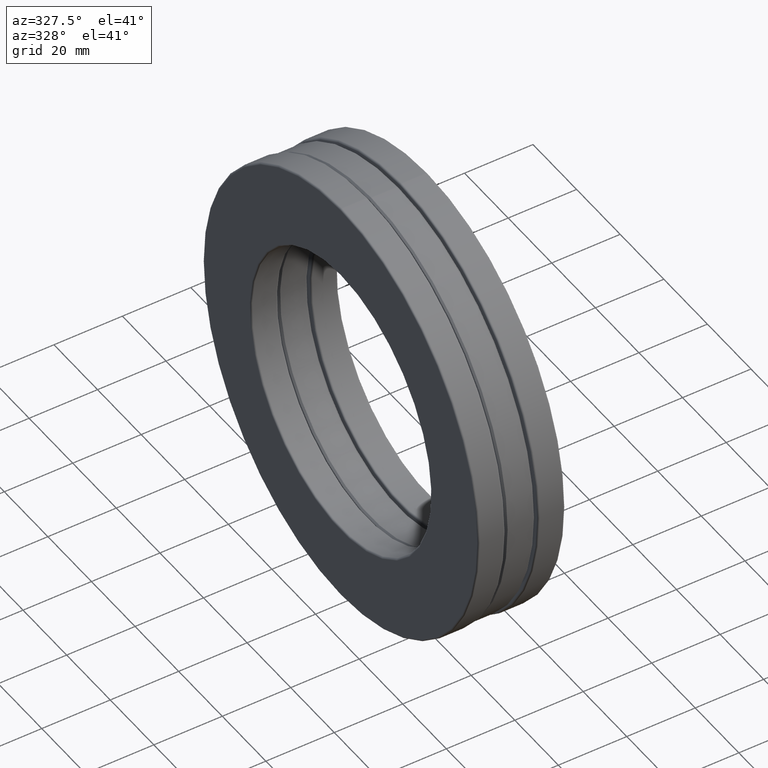
[diagram: clean part render]
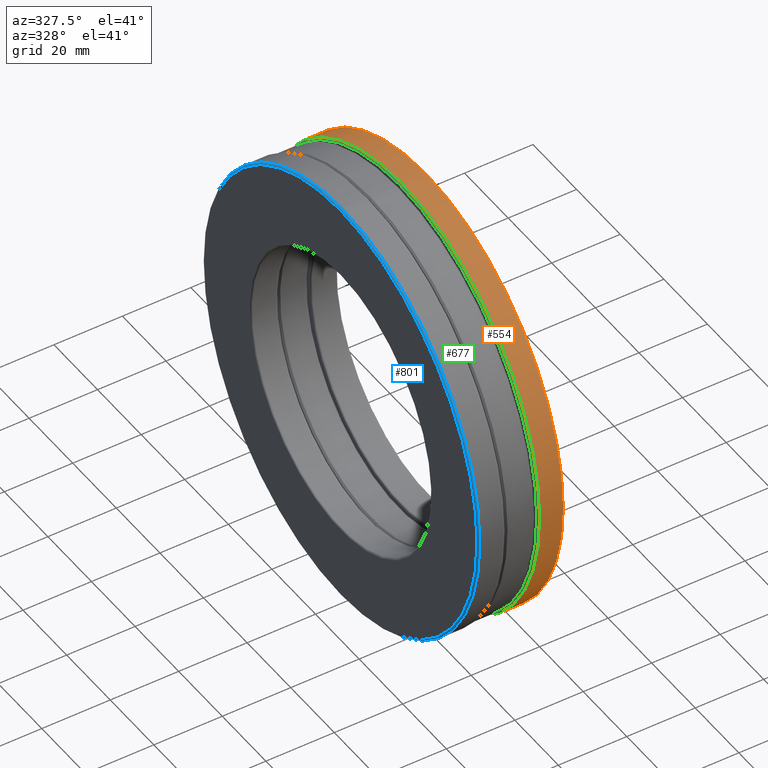
[diagram: same view with three faces highlighted in distinct colors, each labeled with its STEP entity id]
A machine part, auxiliary view with three faces highlighted in distinct colors.
Their STEP definitions:

[orange] entity #554 — the highlighted cylindrical surface (bore or boss wall) has radius 63.1031 mm, axis along (-1, -0, -0).
#31 = CARTESIAN_POINT ( 'NONE',  ( 0.2075000000000000200, 0.0000000000000000000, 2.484375000000000000 ) ) ;
#65 = CIRCLE ( 'NONE', #429, 2.484375000000000000 ) ;
#171 = EDGE_CURVE ( 'NONE', #1154, #1154, #525, .T. ) ;
#199 = DIRECTION ( 'NONE',  ( -1.000000000000000000, -0.0000000000000000000, -0.0000000000000000000 ) ) ;
#204 = EDGE_LOOP ( 'NONE', ( #1197 ) ) ;
#283 = DIRECTION ( 'NONE',  ( -1.000000000000000000, -0.0000000000000000000, -0.0000000000000000000 ) ) ;
#411 = DIRECTION ( 'NONE',  ( 0.0000000000000000000, 0.0000000000000000000, 1.000000000000000000 ) ) ;
#420 = ORIENTED_EDGE ( 'NONE', *, *, #441, .T. ) ;
#429 = AXIS2_PLACEMENT_3D ( 'NONE', #969, #1047, #487 ) ;
#441 = EDGE_CURVE ( 'NONE', #1332, #1332, #65, .T. ) ;
#487 = DIRECTION ( 'NONE',  ( 0.0000000000000000000, 0.0000000000000000000, 1.000000000000000000 ) ) ;
#521 = CARTESIAN_POINT ( 'NONE',  ( 0.0000000000000000000, 0.0000000000000000000, 0.0000000000000000000 ) ) ;
#525 = CIRCLE ( 'NONE', #998, 2.484375000000000000 ) ;
#533 = DIRECTION ( 'NONE',  ( 0.0000000000000000000, 0.0000000000000000000, 1.000000000000000000 ) ) ;
#554 = ADVANCED_FACE ( 'NONE', ( #1072, #773 ), #1328, .T. ) ;
#592 = CARTESIAN_POINT ( 'NONE',  ( 0.4799999999999999800, 0.0000000000000000000, 2.484375000000000000 ) ) ;
#773 = FACE_OUTER_BOUND ( 'NONE', #1228, .T. ) ;
#969 = CARTESIAN_POINT ( 'NONE',  ( 0.4799999999999999800, 0.0000000000000000000, 0.0000000000000000000 ) ) ;
#998 = AXIS2_PLACEMENT_3D ( 'NONE', #1177, #283, #411 ) ;
#1047 = DIRECTION ( 'NONE',  ( -1.000000000000000000, -0.0000000000000000000, -0.0000000000000000000 ) ) ;
#1072 = FACE_OUTER_BOUND ( 'NONE', #204, .T. ) ;
#1154 = VERTEX_POINT ( 'NONE', #31 ) ;
#1177 = CARTESIAN_POINT ( 'NONE',  ( 0.2075000000000000200, 0.0000000000000000000, 0.0000000000000000000 ) ) ;
#1197 = ORIENTED_EDGE ( 'NONE', *, *, #171, .F. ) ;
#1228 = EDGE_LOOP ( 'NONE', ( #420 ) ) ;
#1328 = CYLINDRICAL_SURFACE ( 'NONE', #1386, 2.484375000000000000 ) ;
#1332 = VERTEX_POINT ( 'NONE', #592 ) ;
#1386 = AXIS2_PLACEMENT_3D ( 'NONE', #521, #199, #533 ) ;

[blue] entity #801 — the highlighted toroidal blend (fillet) surface has major radius 62.5951 mm and minor (blend) radius 0.508 mm.
#7 = DIRECTION ( 'NONE',  ( -1.000000000000000000, -0.0000000000000000000, -0.0000000000000000000 ) ) ;
#54 = VERTEX_POINT ( 'NONE', #1258 ) ;
#203 = DIRECTION ( 'NONE',  ( -1.000000000000000000, -0.0000000000000000000, -0.0000000000000000000 ) ) ;
#259 = CARTESIAN_POINT ( 'NONE',  ( -0.4800000000000000900, 0.0000000000000000000, 2.484375000000000000 ) ) ;
#300 = ORIENTED_EDGE ( 'NONE', *, *, #1122, .T. ) ;
#465 = EDGE_CURVE ( 'NONE', #54, #54, #899, .T. ) ;
#557 = CARTESIAN_POINT ( 'NONE',  ( -0.4800000000000000900, 0.0000000000000000000, 0.0000000000000000000 ) ) ;
#565 = DIRECTION ( 'NONE',  ( -1.000000000000000000, -0.0000000000000000000, -0.0000000000000000000 ) ) ;
#588 = TOROIDAL_SURFACE ( 'NONE', #1147, 2.464375000000000000, 0.01999999999999988900 ) ;
#622 = FACE_OUTER_BOUND ( 'NONE', #871, .T. ) ;
#627 = AXIS2_PLACEMENT_3D ( 'NONE', #779, #203, #1110 ) ;
#634 = EDGE_LOOP ( 'NONE', ( #300 ) ) ;
#779 = CARTESIAN_POINT ( 'NONE',  ( -0.4800000000000000900, 0.0000000000000000000, 0.0000000000000000000 ) ) ;
#800 = CIRCLE ( 'NONE', #627, 2.484375000000000000 ) ;
#801 = ADVANCED_FACE ( 'NONE', ( #622, #982 ), #588, .T. ) ;
#871 = EDGE_LOOP ( 'NONE', ( #1128 ) ) ;
#886 = VERTEX_POINT ( 'NONE', #259 ) ;
#899 = CIRCLE ( 'NONE', #1217, 2.464375000000000000 ) ;
#982 = FACE_OUTER_BOUND ( 'NONE', #634, .T. ) ;
#1005 = CARTESIAN_POINT ( 'NONE',  ( -0.5000000000000001100, 0.0000000000000000000, 0.0000000000000000000 ) ) ;
#1054 = DIRECTION ( 'NONE',  ( 0.0000000000000000000, 0.0000000000000000000, 1.000000000000000000 ) ) ;
#1110 = DIRECTION ( 'NONE',  ( 0.0000000000000000000, 0.0000000000000000000, 1.000000000000000000 ) ) ;
#1122 = EDGE_CURVE ( 'NONE', #886, #886, #800, .T. ) ;
#1128 = ORIENTED_EDGE ( 'NONE', *, *, #465, .F. ) ;
#1147 = AXIS2_PLACEMENT_3D ( 'NONE', #557, #7, #1339 ) ;
#1217 = AXIS2_PLACEMENT_3D ( 'NONE', #1005, #565, #1054 ) ;
#1258 = CARTESIAN_POINT ( 'NONE',  ( -0.5000000000000001100, 0.0000000000000000000, 2.464375000000000000 ) ) ;
#1339 = DIRECTION ( 'NONE',  ( 0.0000000000000000000, 0.0000000000000000000, 1.000000000000000000 ) ) ;

[green] entity #677 — the highlighted toroidal blend (fillet) surface has major radius 62.5951 mm and minor (blend) radius 0.508 mm.
#24 = CARTESIAN_POINT ( 'NONE',  ( 0.1875000000000000300, 0.0000000000000000000, 0.0000000000000000000 ) ) ;
#26 = DIRECTION ( 'NONE',  ( 0.0000000000000000000, 0.0000000000000000000, 1.000000000000000000 ) ) ;
#31 = CARTESIAN_POINT ( 'NONE',  ( 0.2075000000000000200, 0.0000000000000000000, 2.484375000000000000 ) ) ;
#171 = EDGE_CURVE ( 'NONE', #1154, #1154, #525, .T. ) ;
#255 = CARTESIAN_POINT ( 'NONE',  ( 0.1875000000000000300, 0.0000000000000000000, 2.464375000000000000 ) ) ;
#274 = TOROIDAL_SURFACE ( 'NONE', #1135, 2.464375000000000000, 0.01999999999999988900 ) ;
#283 = DIRECTION ( 'NONE',  ( -1.000000000000000000, -0.0000000000000000000, -0.0000000000000000000 ) ) ;
#400 = VERTEX_POINT ( 'NONE', #255 ) ;
#411 = DIRECTION ( 'NONE',  ( 0.0000000000000000000, 0.0000000000000000000, 1.000000000000000000 ) ) ;
#457 = EDGE_LOOP ( 'NONE', ( #1391 ) ) ;
#525 = CIRCLE ( 'NONE', #998, 2.484375000000000000 ) ;
#677 = ADVANCED_FACE ( 'NONE', ( #1233, #1318 ), #274, .T. ) ;
#700 = AXIS2_PLACEMENT_3D ( 'NONE', #24, #1362, #26 ) ;
#751 = DIRECTION ( 'NONE',  ( -1.000000000000000000, -0.0000000000000000000, -0.0000000000000000000 ) ) ;
#818 = CIRCLE ( 'NONE', #700, 2.464375000000000000 ) ;
#869 = DIRECTION ( 'NONE',  ( 0.0000000000000000000, 0.0000000000000000000, 1.000000000000000000 ) ) ;
#998 = AXIS2_PLACEMENT_3D ( 'NONE', #1177, #283, #411 ) ;
#1086 = CARTESIAN_POINT ( 'NONE',  ( 0.2075000000000000200, 0.0000000000000000000, 0.0000000000000000000 ) ) ;
#1135 = AXIS2_PLACEMENT_3D ( 'NONE', #1086, #751, #869 ) ;
#1154 = VERTEX_POINT ( 'NONE', #31 ) ;
#1177 = CARTESIAN_POINT ( 'NONE',  ( 0.2075000000000000200, 0.0000000000000000000, 0.0000000000000000000 ) ) ;
#1229 = ORIENTED_EDGE ( 'NONE', *, *, #171, .T. ) ;
#1233 = FACE_OUTER_BOUND ( 'NONE', #457, .T. ) ;
#1318 = FACE_OUTER_BOUND ( 'NONE', #1428, .T. ) ;
#1362 = DIRECTION ( 'NONE',  ( -1.000000000000000000, -0.0000000000000000000, -0.0000000000000000000 ) ) ;
#1391 = ORIENTED_EDGE ( 'NONE', *, *, #1458, .F. ) ;
#1428 = EDGE_LOOP ( 'NONE', ( #1229 ) ) ;
#1458 = EDGE_CURVE ( 'NONE', #400, #400, #818, .T. ) ;